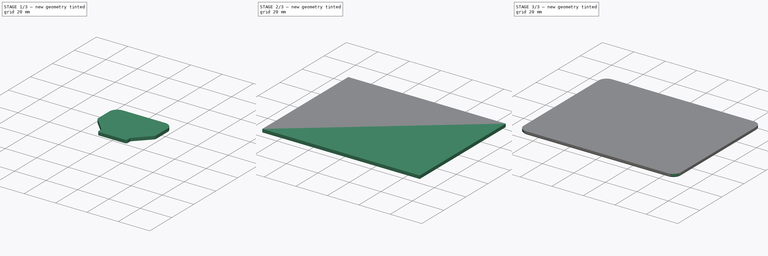
[diagram: build sequence overview — one tinted view per stage of 3, left to right]
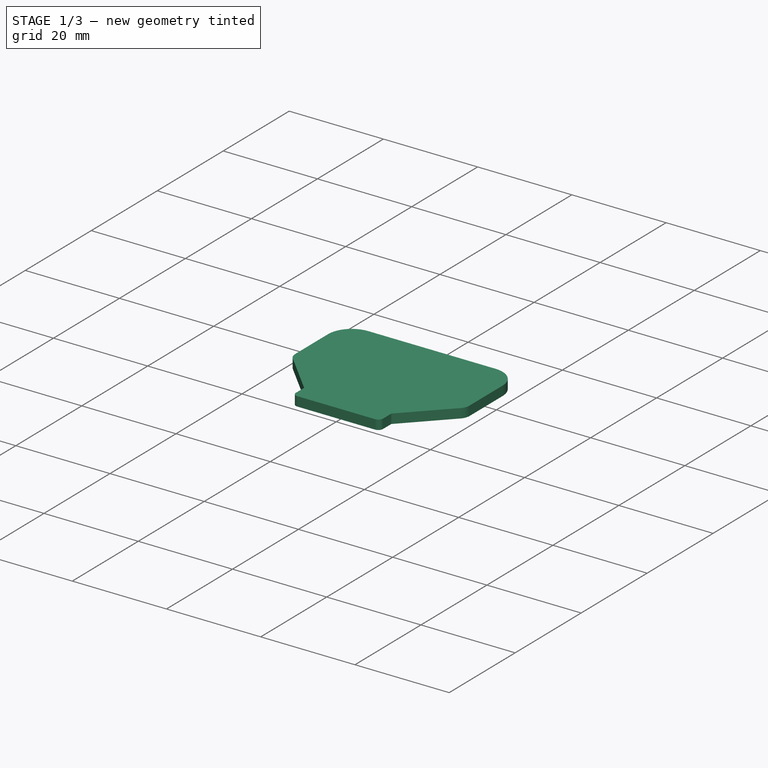
[diagram: stage 1 of 3 — iso view after this stage's code; geometry added in this stage tinted green]
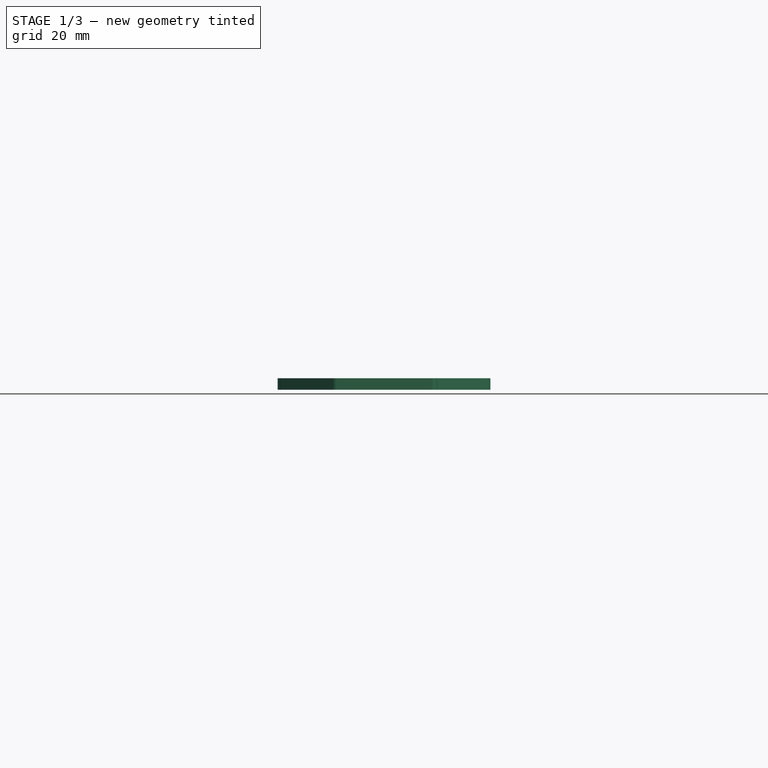
[diagram: stage 1 of 3 — front view after this stage's code; geometry added in this stage tinted green]
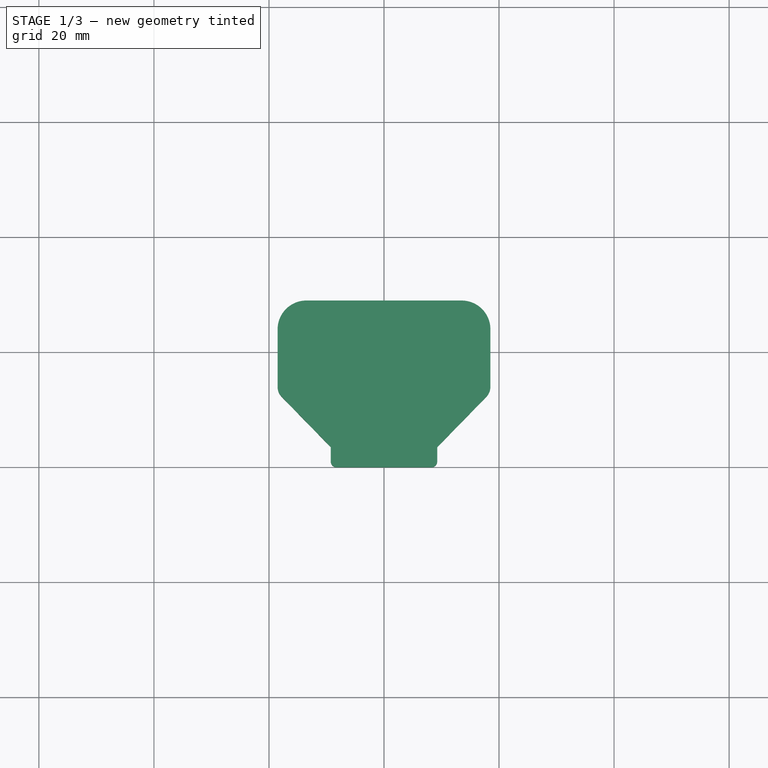
[diagram: stage 1 of 3 — top view after this stage's code; geometry added in this stage tinted green]
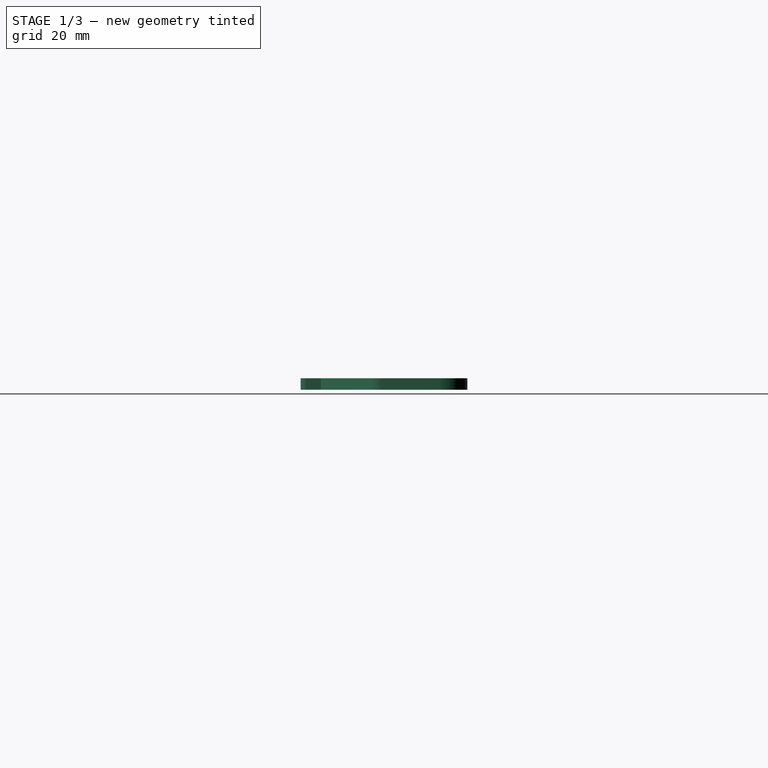
[diagram: stage 1 of 3 — right view after this stage's code; geometry added in this stage tinted green]
FCSTD DOCUMENT  (FreeCAD 0.19R23323 (Git))
Label: underneath loop the loop
License: All rights reserved
LicenseURL: http://en.wikipedia.org/wiki/All_rights_reserved
objects: Sketcher::SketchObject×2, PartDesign::Pad×2, PartDesign::Fillet×2, PartDesign::Chamfer×2, PartDesign::Body×2
note: 16 computed .brp shape members not serialized (recipe doc carries the construction recipe); baked Part::Feature solids carry a one-line shape summary decoded from their .brp

FEATURE [PartDesign::Body] Body  label="Base"
  Group = -> [Sketch,Pad,Fillet,Chamfer]
  Origin = -> Origin
  Tip = -> Chamfer
FEATURE [Sketcher::SketchObject] Sketch001
  MapMode = 5
  Support = -> [XY_Plane001]
  sketch-geometry (12):
    g0: LineSegment StartX=-13.5 StartY=29 StartZ=0 EndX=13.5 EndY=29 EndZ=0
    g1: LineSegment StartX=18.5 StartY=24 StartZ=0 EndX=18.5 EndY=14 EndZ=0
    g2: LineSegment StartX=17.7896 StartY=12.2543 StartZ=0 EndX=9.25 EndY=3.5 EndZ=0
    g3: LineSegment StartX=-9.25 StartY=3.5 StartZ=0 EndX=-17.7896 EndY=12.2543 EndZ=0
    g4: LineSegment StartX=-18.5 StartY=14 StartZ=0 EndX=-18.5 EndY=24 EndZ=0
    g5: ArcOfCircle CenterX=13.5 CenterY=24 CenterZ=0 NormalX=0 NormalY=0 NormalZ=1 AngleXU=0 Radius=5 StartAngle=1e-16 EndAngle=1.5708
    g6: ArcOfCircle CenterX=-13.5 CenterY=24 CenterZ=0 NormalX=0 NormalY=0 NormalZ=1 AngleXU=0 Radius=5 StartAngle=1.5708 EndAngle=3.14159
    g7: ArcOfCircle CenterX=-16 CenterY=14 CenterZ=0 NormalX=0 NormalY=0 NormalZ=1 AngleXU=0 Radius=2.5 StartAngle=3.14159 EndAngle=3.91457
    g8: ArcOfCircle CenterX=16 CenterY=14 CenterZ=0 NormalX=0 NormalY=0 NormalZ=1 AngleXU=0 Radius=2.5 StartAngle=5.5102 EndAngle=6.28319
    g9: LineSegment StartX=-9.25 StartY=3.5 StartZ=0 EndX=-9.25 EndY=0 EndZ=0
    g10: LineSegment StartX=-9.25 StartY=0 StartZ=0 EndX=9.25 EndY=0 EndZ=0
    g11: LineSegment StartX=9.25 StartY=0 StartZ=0 EndX=9.25 EndY=3.5 EndZ=0
  constraints (30):
    c: Vertical(g1)
    c: Vertical(g4)
    c: Equal(g4,g1)
    c: Tangent(g0,g5) = 1.5708
    c: Tangent(g1,g5) = 1.5708
    c: Tangent(g0,g6) = 1.5708
    c: Tangent(g4,g6) = 1.5708
    c: Tangent(g4,g7) = 1.5708
    c: Tangent(g3,g7) = 1.5708
    c: Tangent(g1,g8) = 1.5708
    c: Tangent(g2,g8) = 1.5708
    c: Radius(g6) = 5
    c: Equal(g5,g6)
    c: Radius(g7) = 2.5
    c: Equal(g8,g7)
    c: Symmetric(g0,g0,g-2)
    c: DistanceY(g4,g4) = 10
    c: DistanceX(g4,g1) = 37
    c: Coincident(g3,g9)
    c: PointOnObject(g9,g-1)
    c: Coincident(g9,g10)
    c: Coincident(g10,g11)
    c: Coincident(g11,g2)
    c: Vertical(g11)
    c: Vertical(g9)
    c: DistanceX(g10,g10) = 18.5
    c: DistanceY(g3,g0) = 25.5
    c: DistanceY(g2,g0) = 25.5
    c: Symmetric(g9,g10,g-1)
    c: DistanceY(g10,g0) = 29
FEATURE [PartDesign::Pad] Pad001
  Direction = (1,1,1)
  Length = 2
  Length2 = 100
  Profile = -> Sketch001
  Type = 0
FEATURE [PartDesign::Fillet] Fillet001
  Base = -> Pad001 [Edge20,Edge17]
  BaseFeature = -> Pad001
  Radius = 1
  SupportTransform = false
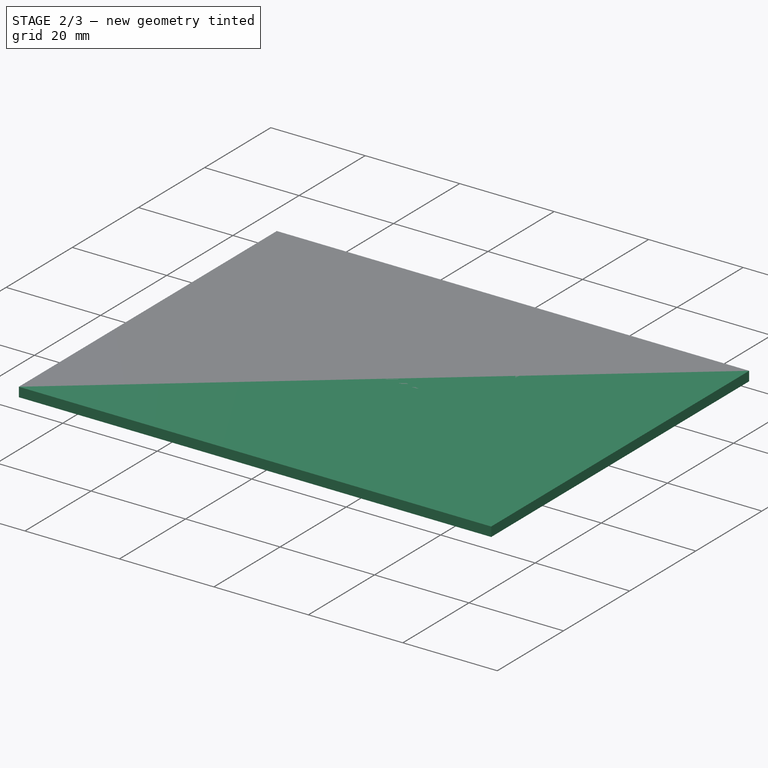
[diagram: stage 2 of 3 — iso view after this stage's code; geometry added in this stage tinted green]
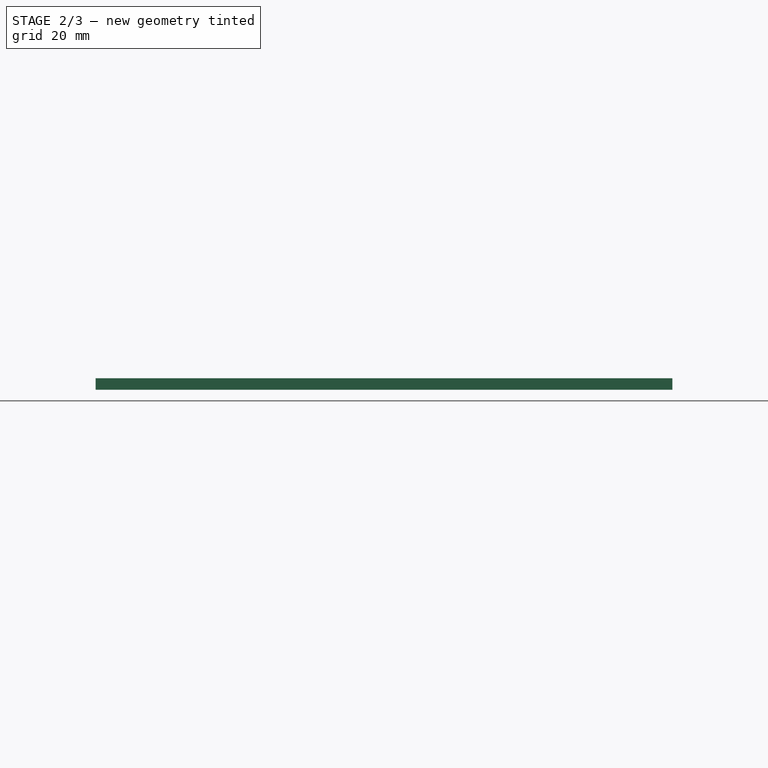
[diagram: stage 2 of 3 — front view after this stage's code; geometry added in this stage tinted green]
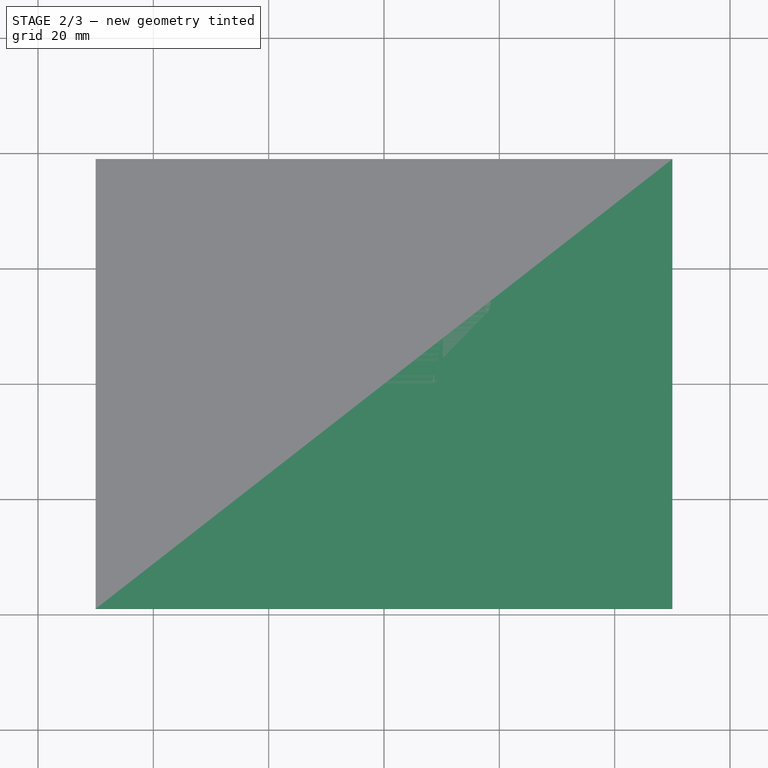
[diagram: stage 2 of 3 — top view after this stage's code; geometry added in this stage tinted green]
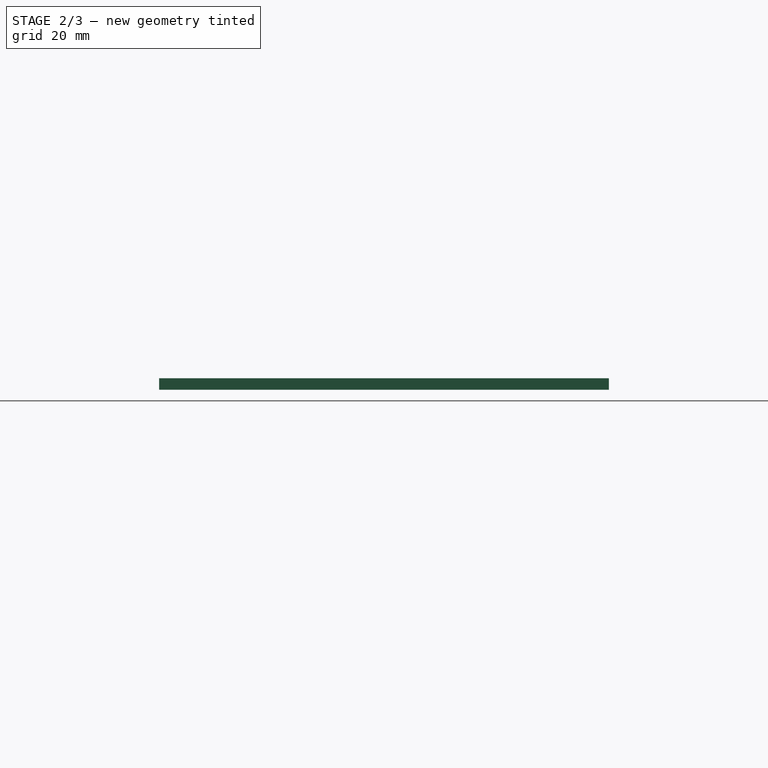
[diagram: stage 2 of 3 — right view after this stage's code; geometry added in this stage tinted green]
FEATURE [Sketcher::SketchObject] Sketch
  MapMode = 5
  Support = -> [XY_Plane]
  sketch-geometry (4):
    g0: LineSegment StartX=-50 StartY=39 StartZ=0 EndX=50 EndY=39 EndZ=0
    g1: LineSegment StartX=50 StartY=39 StartZ=0 EndX=50 EndY=-39 EndZ=0
    g2: LineSegment StartX=50 StartY=-39 StartZ=0 EndX=-50 EndY=-39 EndZ=0
    g3: LineSegment StartX=-50 StartY=-39 StartZ=0 EndX=-50 EndY=39 EndZ=0
  constraints (11):
    c: Coincident(g0,g1)
    c: Coincident(g1,g2)
    c: Coincident(g2,g3)
    c: Coincident(g3,g0)
    c: Horizontal(g0)
    c: Horizontal(g2)
    c: Vertical(g1)
    c: Vertical(g3)
    c: DistanceY(g1,g1) = 78
    c: DistanceX(g0,g0) = 100
    c: Symmetric(g0,g1,g-1)
FEATURE [PartDesign::Pad] Pad
  Direction = (1,1,1)
  Length = 2
  Length2 = 100
  Profile = -> Sketch
  Type = 0
FEATURE [PartDesign::Chamfer] Chamfer001
  Angle = 45
  Base = -> Fillet001 [Edge13,Edge7,Edge9,Edge11,Edge17,Edge15,Edge16,Edge14,Edge12,Edge10,Edge8,Edge6,Edge1,Edge5]
  BaseFeature = -> Fillet001
  ChamferType = 0
  FlipDirection = false
  Size = 0.5
  Size2 = 1
  SupportTransform = false
FEATURE [PartDesign::Body] Body001  label="Foot"
  Group = -> [Sketch001,Pad001,Fillet001,Chamfer001]
  Origin = -> Origin001
  Tip = -> Chamfer001
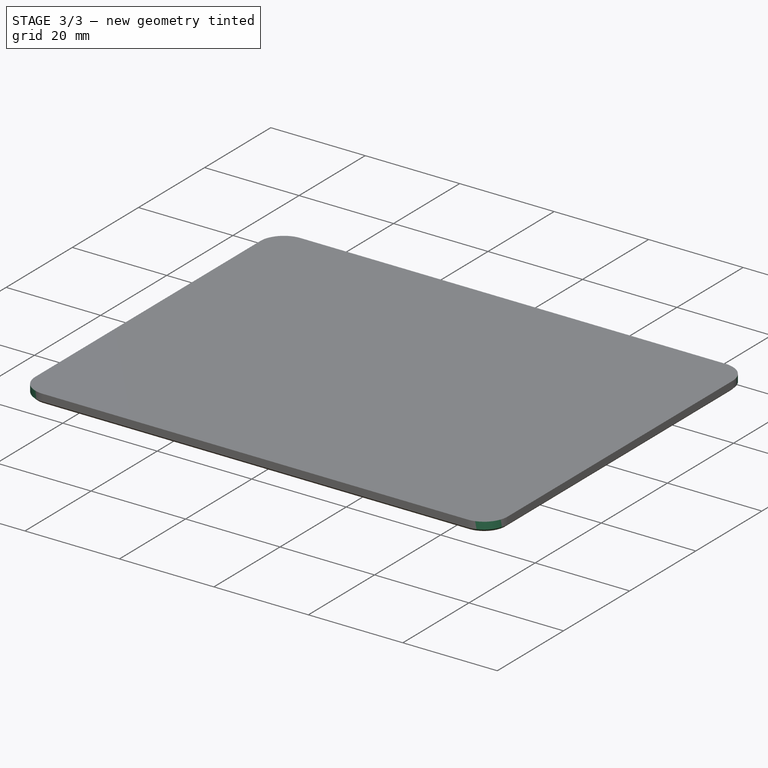
[diagram: stage 3 of 3 — iso view after this stage's code; geometry added in this stage tinted green]
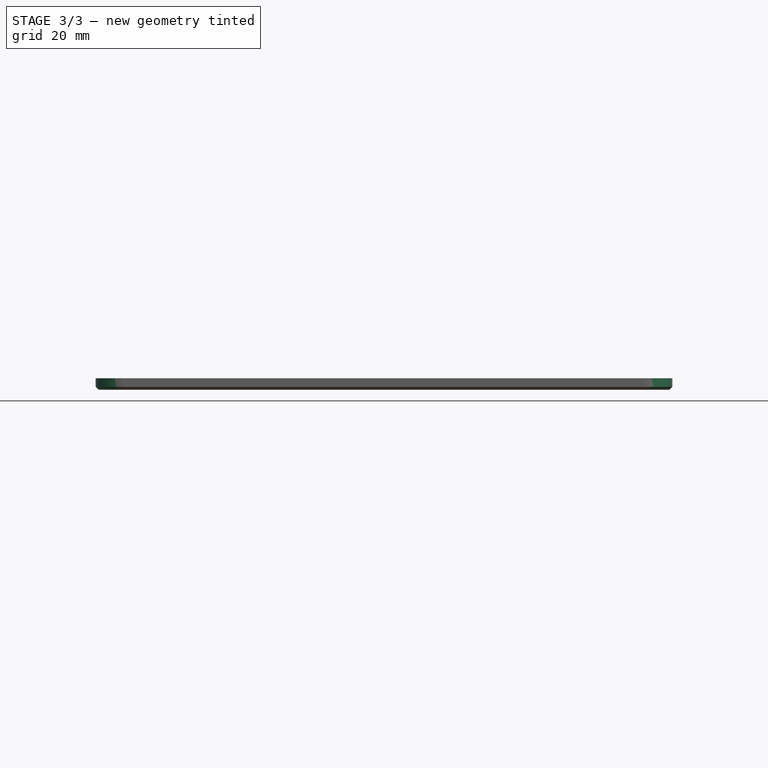
[diagram: stage 3 of 3 — front view after this stage's code; geometry added in this stage tinted green]
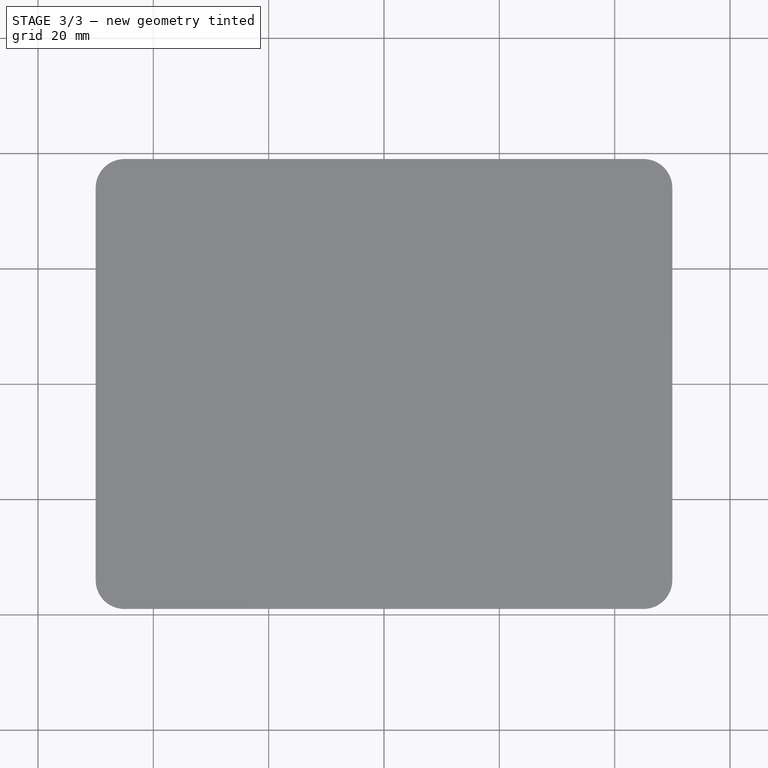
[diagram: stage 3 of 3 — top view after this stage's code; geometry added in this stage tinted green]
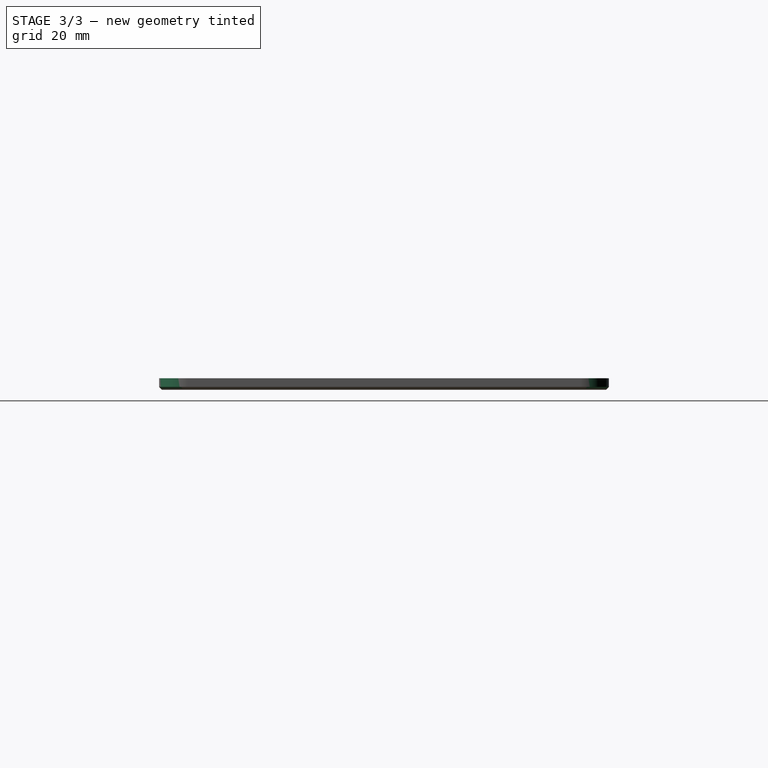
[diagram: stage 3 of 3 — right view after this stage's code; geometry added in this stage tinted green]
FEATURE [PartDesign::Fillet] Fillet
  Base = -> Pad [Edge2,Edge5,Edge8,Edge1]
  BaseFeature = -> Pad
  Radius = 5
  SupportTransform = false
FEATURE [PartDesign::Chamfer] Chamfer
  Angle = 45
  Base = -> Fillet [Edge11,Edge7,Edge1,Edge8]
  BaseFeature = -> Fillet
  ChamferType = 0
  FlipDirection = false
  Size = 0.5
  Size2 = 1
  SupportTransform = false
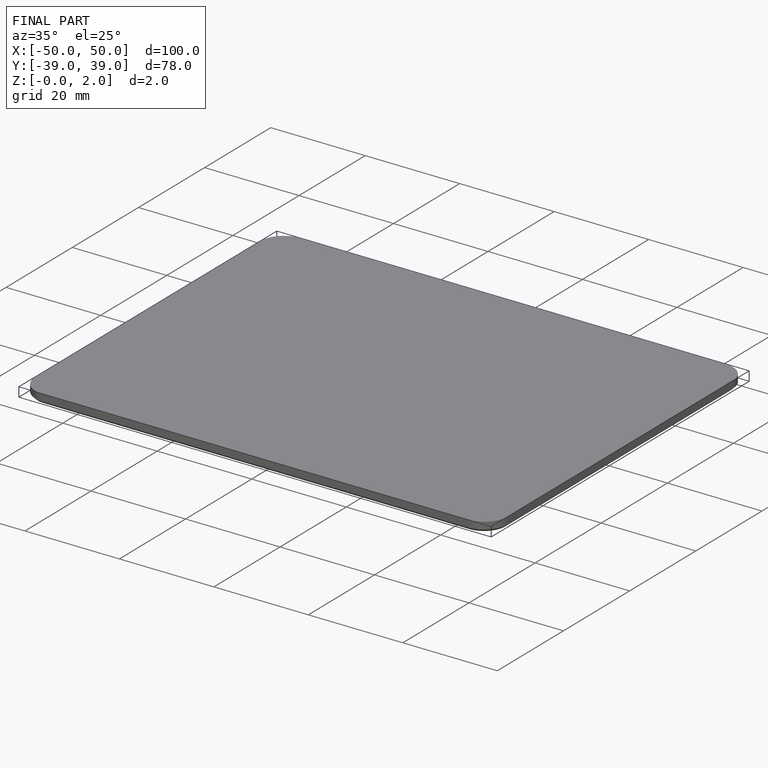
[diagram: finished part — iso view with bounding-box wireframe]
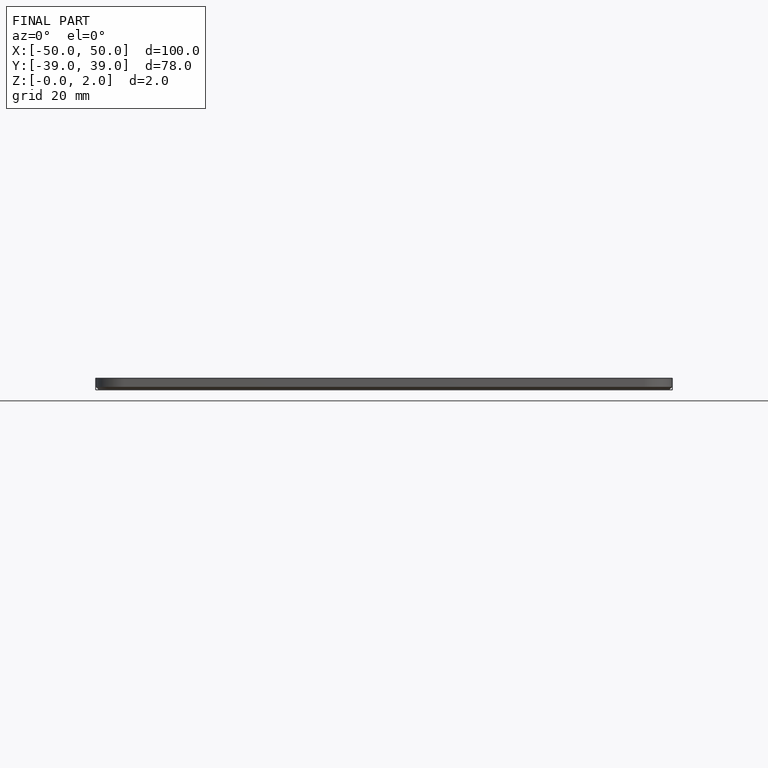
[diagram: finished part — front view with bounding-box wireframe]
